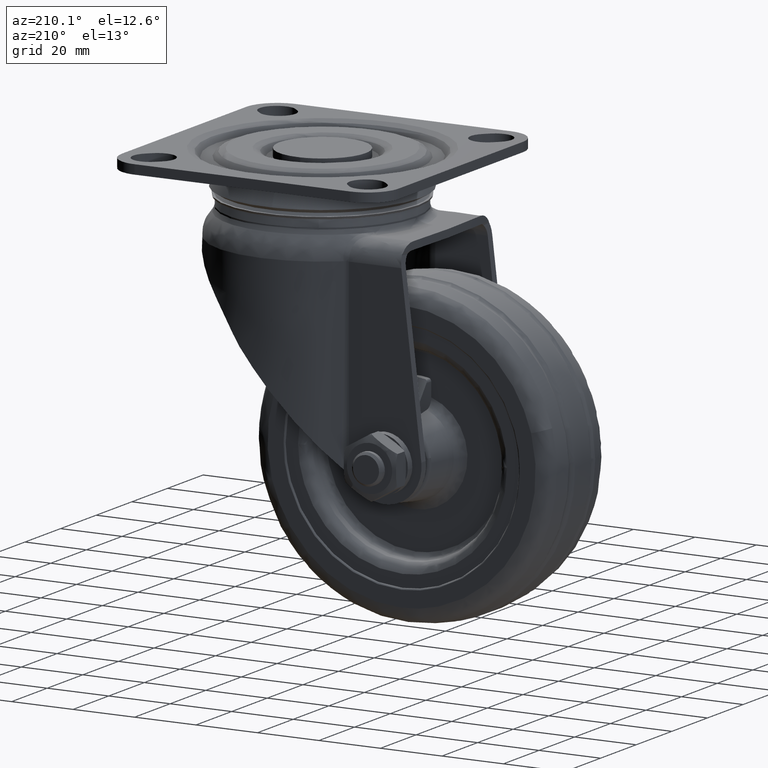
[diagram: clean part render]
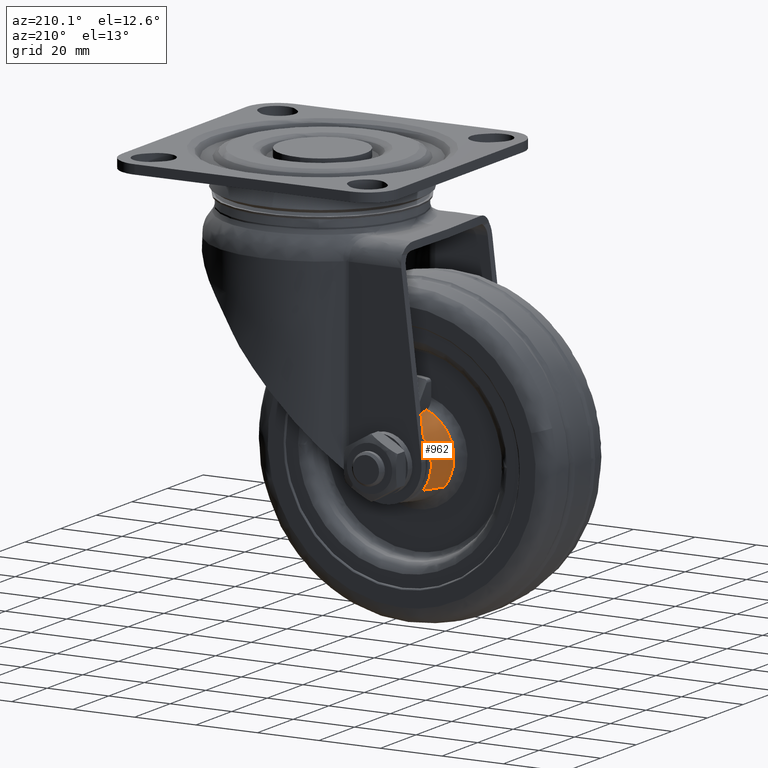
[diagram: same view with one face highlighted and labeled with its STEP entity id]
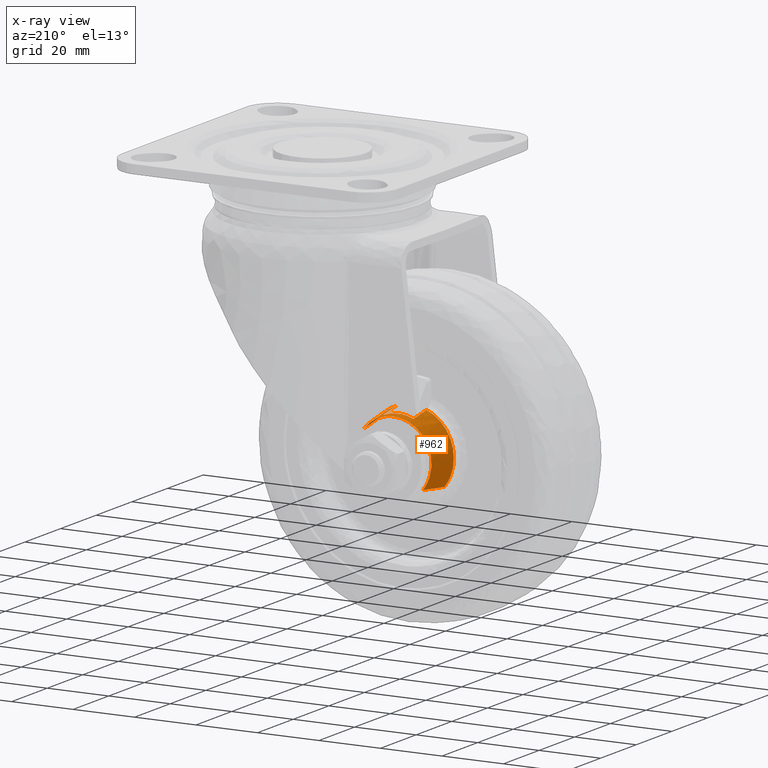
[diagram: x-ray of the same camera — body ghosted, the highlighted face saturated]
A machine part, auxiliary view. The second image highlights one B-rep face of the part: STEP entity #962.
The next image is the same camera in x-ray: the body ghosted, the highlighted face saturated — about 0% of this face is hidden behind the body in this view.
In plain terms, the highlighted face is a freeform B-spline surface patch.
Its self-contained STEP definition (entity closure, byte-faithful):
#46=CARTESIAN_POINT('',(-40.0,10.573671367128719,-69.092006595904635));
#47=VERTEX_POINT('',#46);
#48=CARTESIAN_POINT('',(-45.807057311213683,10.573671367125369,-90.650112595475662));
#49=VERTEX_POINT('',#48);
#50=CARTESIAN_POINT('',(-40.0,10.573671367128719,-69.092006595904635));
#51=CARTESIAN_POINT('',(-50.718890127530450,10.573671367127696,-73.244037600541546));
#52=CARTESIAN_POINT('',(-48.606922054357348,10.573671367126151,-84.543310050015123));
#53=CARTESIAN_POINT('',(-47.970753688047090,10.573671367125675,-87.946884084103758));
#54=CARTESIAN_POINT('',(-45.807057311213683,10.573671367125367,-90.650112595475662));
#62=(BOUNDED_CURVE()B_SPLINE_CURVE(2,(#50,#51,#52,#53,#54),.UNSPECIFIED.,.F.,.U.)B_SPLINE_CURVE_WITH_KNOTS((3,2,3),(0.0,0.250000000000000,0.339776084299116),.UNSPECIFIED.)CURVE()GEOMETRIC_REPRESENTATION_ITEM()RATIONAL_B_SPLINE_CURVE((1.0,0.769327633555223,1.0,0.917164552738309,0.893822242247182))REPRESENTATION_ITEM(''));
#63=EDGE_CURVE('',#47,#49,#62,.T.);
#65=CARTESIAN_POINT('',(-24.192942688770781,10.573671367127099,-73.349917180911376));
#66=VERTEX_POINT('',#65);
#84=CARTESIAN_POINT('',(-30.0,10.573671367128719,-69.092006595904635));
#85=VERTEX_POINT('',#84);
#86=CARTESIAN_POINT('',(-24.192942688770774,10.573671367127098,-73.349917180911376));
#87=CARTESIAN_POINT('',(-26.522999565516262,10.573671367127906,-70.438845068484198));
#88=CARTESIAN_POINT('',(-30.0,10.573671367128719,-69.092006595904635));
#96=(BOUNDED_CURVE()B_SPLINE_CURVE(2,(#86,#87,#88),.UNSPECIFIED.,.F.,.U.)B_SPLINE_CURVE_WITH_KNOTS((3,3),(0.903933134558040,1.0),.UNSPECIFIED.)CURVE()GEOMETRIC_REPRESENTATION_ITEM()RATIONAL_B_SPLINE_CURVE((0.890843077543977,0.911360115246285,1.0))REPRESENTATION_ITEM(''));
#97=EDGE_CURVE('',#66,#85,#96,.T.);
#727=CARTESIAN_POINT('',(-30.0,18.0,-70.242623020520568));
#728=VERTEX_POINT('',#727);
#734=CARTESIAN_POINT('',(-40.0,18.0,-70.242623020520568));
#735=VERTEX_POINT('',#734);
#736=CARTESIAN_POINT('',(-30.0,18.0,-70.242623020520568));
#737=CARTESIAN_POINT('',(-35.000000000000007,17.999999999999996,-68.116301104793763));
#738=CARTESIAN_POINT('',(-40.0,18.0,-70.242623020520568));
#746=(BOUNDED_CURVE()B_SPLINE_CURVE(2,(#736,#737,#738),.UNSPECIFIED.,.F.,.U.)CURVE()GEOMETRIC_REPRESENTATION_ITEM()QUASI_UNIFORM_CURVE()RATIONAL_B_SPLINE_CURVE((1.0,0.920243313683051,1.0))REPRESENTATION_ITEM(''));
#747=EDGE_CURVE('',#728,#735,#746,.T.);
#765=CARTESIAN_POINT('',(-40.0,18.0,-70.242623020520583));
#766=CARTESIAN_POINT('',(-40.0,15.524962815333121,-69.856493944542478));
#767=CARTESIAN_POINT('',(-40.0,13.049481984090489,-69.473184999560218));
#768=CARTESIAN_POINT('',(-40.0,10.573671367128719,-69.092006595904621));
#769=QUASI_UNIFORM_CURVE('',3,(#765,#766,#767,#768),.UNSPECIFIED.,.F.,.U.);
#770=EDGE_CURVE('',#735,#47,#769,.T.);
#866=CARTESIAN_POINT('',(-30.0,10.573671367128719,-69.092006595904635));
#867=CARTESIAN_POINT('',(-30.0,13.049481984090489,-69.473184999560218));
#868=CARTESIAN_POINT('',(-30.0,15.524962815333121,-69.856493944542478));
#869=CARTESIAN_POINT('',(-30.0,18.0,-70.242623020520583));
#870=QUASI_UNIFORM_CURVE('',3,(#866,#867,#868,#869),.UNSPECIFIED.,.F.,.U.);
#871=EDGE_CURVE('',#85,#728,#870,.T.);
#878=CARTESIAN_POINT('',(-25.349668051174540,20.893821341764681,-74.275773972174193));
#879=CARTESIAN_POINT('',(-33.073908967183954,20.893821341764671,-64.625442023348739));
#880=CARTESIAN_POINT('',(-42.724240916009421,20.893821341764681,-72.349682939358146));
#881=CARTESIAN_POINT('',(-52.374572864834882,20.893821341764671,-80.073923855367553));
#882=CARTESIAN_POINT('',(-44.650331948825460,20.893821341764681,-89.724255804193035));
#883=CARTESIAN_POINT('',(-24.164024554716281,10.315667617762820,-73.326770761123200));
#884=CARTESIAN_POINT('',(-32.837268681776685,10.315667617762818,-62.490795315839478));
#885=CARTESIAN_POINT('',(-43.673244127060407,10.315667617762820,-71.164039442899892));
#886=CARTESIAN_POINT('',(-54.509219572344136,10.315667617762818,-79.837283569960306));
#887=CARTESIAN_POINT('',(-45.835975445283722,10.315667617762820,-90.673259015244014));
#895=(BOUNDED_SURFACE()B_SPLINE_SURFACE(2,1,((#878,#883),(#879,#884),(#880,#885),(#881,#886),(#882,#887)),.UNSPECIFIED.,.F.,.F.,.U.)B_SPLINE_SURFACE_WITH_KNOTS((3,2,3),(2,2),(0.0,22.996488051455611,45.992976102911229),(0.0,10.686612831196481),.UNSPECIFIED.)GEOMETRIC_REPRESENTATION_ITEM()RATIONAL_B_SPLINE_SURFACE(((1.0,1.0),(0.707106781186548,0.707106781186548),(1.0,1.0),(0.707106781186548,0.707106781186548),(1.0,1.0)))REPRESENTATION_ITEM('')SURFACE());
#896=ORIENTED_EDGE('',*,*,#97,.F.);
#897=CARTESIAN_POINT('',(-25.321455223374290,20.642110192834590,-74.253192087942551));
#898=VERTEX_POINT('',#897);
#899=CARTESIAN_POINT('',(-25.321455223374290,20.642110192834590,-74.253192087942551));
#900=CARTESIAN_POINT('',(-24.192942688770781,10.573671367127099,-73.349917180911376));
#901=QUASI_UNIFORM_CURVE('',1,(#899,#900),.UNSPECIFIED.,.F.,.U.);
#902=EDGE_CURVE('',#898,#66,#901,.T.);
#903=ORIENTED_EDGE('',*,*,#902,.F.);
#904=CARTESIAN_POINT('',(-35.0,20.642109999999999,-69.602938888183758));
#905=VERTEX_POINT('',#904);
#906=CARTESIAN_POINT('',(-25.321455223374290,20.642110192834597,-74.253192087942551));
#907=CARTESIAN_POINT('',(-29.043573357318017,20.642110076225716,-69.602938882439602));
#908=CARTESIAN_POINT('',(-35.0,20.642109999999999,-69.602938888183758));
#916=(BOUNDED_CURVE()B_SPLINE_CURVE(2,(#906,#907,#908),.UNSPECIFIED.,.F.,.U.)B_SPLINE_CURVE_WITH_KNOTS((3,3),(0.358324064423229,0.500000000000000),.UNSPECIFIED.)CURVE()GEOMETRIC_REPRESENTATION_ITEM()RATIONAL_B_SPLINE_CURVE((0.856159782464483,0.834016316802048,1.0))REPRESENTATION_ITEM(''));
#917=EDGE_CURVE('',#898,#905,#916,.T.);
#918=ORIENTED_EDGE('',*,*,#917,.T.);
#919=CARTESIAN_POINT('',(-47.256390701446684,20.642110366773561,-80.137656859976019));
#920=VERTEX_POINT('',#919);
#921=CARTESIAN_POINT('',(-35.0,20.642109999999999,-69.602938888183758));
#922=CARTESIAN_POINT('',(-45.655640829259987,20.642110183386777,-69.602938896963224));
#923=CARTESIAN_POINT('',(-47.256390701446669,20.642110366773558,-80.137656859976019));
#931=(BOUNDED_CURVE()B_SPLINE_CURVE(2,(#921,#922,#923),.UNSPECIFIED.,.F.,.U.)B_SPLINE_CURVE_WITH_KNOTS((3,3),(0.500000000000000,0.724102415372555),.UNSPECIFIED.)CURVE()GEOMETRIC_REPRESENTATION_ITEM()RATIONAL_B_SPLINE_CURVE((1.0,0.737447688870651,0.945604234427172))REPRESENTATION_ITEM(''));
#932=EDGE_CURVE('',#905,#920,#931,.T.);
#933=ORIENTED_EDGE('',*,*,#932,.T.);
#934=CARTESIAN_POINT('',(-44.678546121923830,20.642120333759792,-89.746833646784694));
#935=VERTEX_POINT('',#934);
#936=CARTESIAN_POINT('',(-47.256390701446669,20.642110366773558,-80.137656859976019));
#937=CARTESIAN_POINT('',(-47.397075791873085,20.642111229452713,-81.063522021417782));
#938=CARTESIAN_POINT('',(-47.397075694670960,20.642112137753710,-82.000014737277823));
#939=CARTESIAN_POINT('',(-47.397075243125954,20.642116357196301,-86.350419816614604));
#940=CARTESIAN_POINT('',(-44.678546121923837,20.642120333759792,-89.746833646784694));
#948=(BOUNDED_CURVE()B_SPLINE_CURVE(2,(#936,#937,#938,#939,#940),.UNSPECIFIED.,.F.,.U.)B_SPLINE_CURVE_WITH_KNOTS((3,2,3),(0.724102415372555,0.750000000000000,0.858324016209548),.UNSPECIFIED.)CURVE()GEOMETRIC_REPRESENTATION_ITEM()RATIONAL_B_SPLINE_CURVE((0.945604234427172,0.969659092315896,1.0,0.873090520870339,0.856159797535772))REPRESENTATION_ITEM(''));
#949=EDGE_CURVE('',#920,#935,#948,.T.);
#950=ORIENTED_EDGE('',*,*,#949,.T.);
#951=CARTESIAN_POINT('',(-44.678546121923830,20.642120333759792,-89.746833646784694));
#952=CARTESIAN_POINT('',(-45.807057311213683,10.573671367125369,-90.650112595475662));
#953=QUASI_UNIFORM_CURVE('',1,(#951,#952),.UNSPECIFIED.,.F.,.U.);
#954=EDGE_CURVE('',#935,#49,#953,.T.);
#955=ORIENTED_EDGE('',*,*,#954,.T.);
#956=ORIENTED_EDGE('',*,*,#63,.F.);
#957=ORIENTED_EDGE('',*,*,#770,.F.);
#958=ORIENTED_EDGE('',*,*,#747,.F.);
#959=ORIENTED_EDGE('',*,*,#871,.F.);
#960=EDGE_LOOP('',(#896,#903,#918,#933,#950,#955,#956,#957,#958,#959));
#961=FACE_OUTER_BOUND('',#960,.T.);
#962=ADVANCED_FACE('',(#961),#895,.T.);